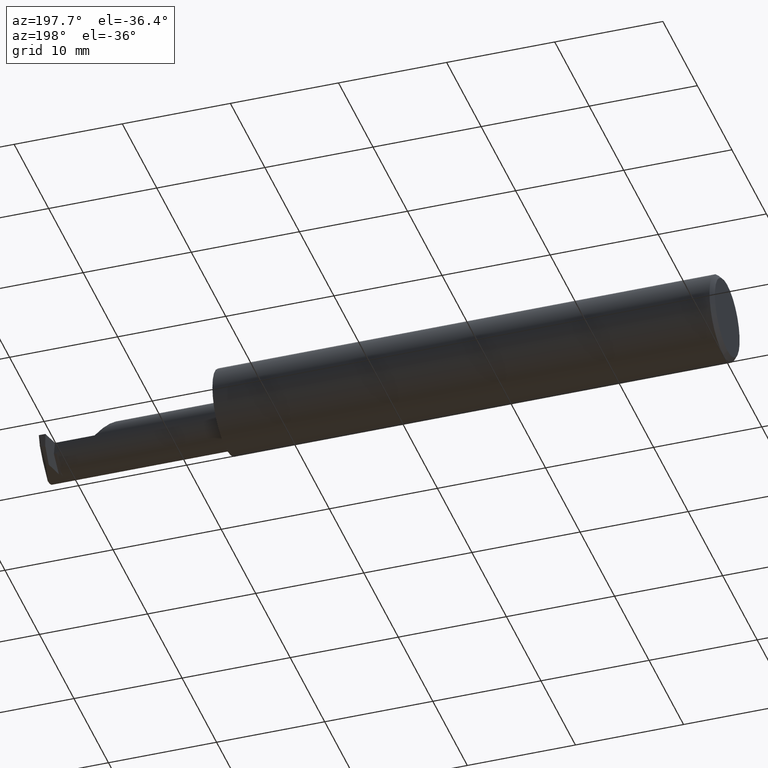
[diagram: clean part render]
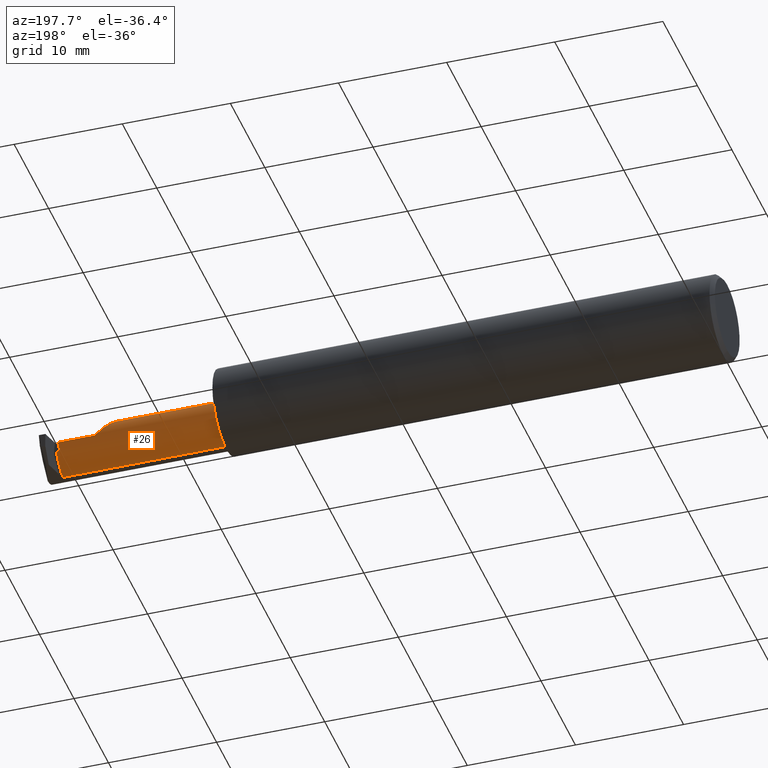
[diagram: same view with one face highlighted and labeled with its STEP entity id]
A machine part, auxiliary view. The second image highlights one B-rep face of the part: STEP entity #26.
In plain terms, the highlighted cylindrical surface (edge-blend (fillet) strip) has radius 2.2225 mm, axis along (-1, -0, -0).
Its self-contained STEP definition (entity closure, byte-faithful):
#9 = DIRECTION ( 'NONE',  ( 1.000000000000000000, 0.000000000000000000, 0.000000000000000000 ) ) ;
#12 = DIRECTION ( 'NONE',  ( -1.000000000000000000, -0.000000000000000000, -0.000000000000000000 ) ) ;
#16 = LINE ( 'NONE', #838, #612 ) ;
#24 = VERTEX_POINT ( 'NONE', #90 ) ;
#26 = ADVANCED_FACE ( 'NONE', ( #467 ), #842, .T. ) ;
#30 = ORIENTED_EDGE ( 'NONE', *, *, #316, .T. ) ;
#36 = DIRECTION ( 'NONE',  ( 1.000000000000000000, 0.000000000000000000, 0.000000000000000000 ) ) ;
#54 = LINE ( 'NONE', #189, #606 ) ;
#67 = VERTEX_POINT ( 'NONE', #389 ) ;
#70 = CARTESIAN_POINT ( 'NONE',  ( 1.824999999999999956, -0.07560000000000000053, -0.08750000000000002220 ) ) ;
#78 = VERTEX_POINT ( 'NONE', #680 ) ;
#90 = CARTESIAN_POINT ( 'NONE',  ( 2.212499999999999911, -0.07560000000000001441, 0.08750000000000002220 ) ) ;
#99 = EDGE_CURVE ( 'NONE', #67, #150, #16, .T. ) ;
#107 = VERTEX_POINT ( 'NONE', #834 ) ;
#112 = DIRECTION ( 'NONE',  ( -1.000000000000000000, -0.000000000000000000, -0.000000000000000000 ) ) ;
#141 = DIRECTION ( 'NONE',  ( -1.000000000000000000, -0.000000000000000000, -0.000000000000000000 ) ) ;
#147 = CARTESIAN_POINT ( 'NONE',  ( 1.849999999999999867, -0.07560000000000001441, 0.000000000000000000 ) ) ;
#149 = CIRCLE ( 'NONE', #195, 0.08750000000000002220 ) ;
#150 = VERTEX_POINT ( 'NONE', #381 ) ;
#175 = EDGE_CURVE ( 'NONE', #332, #24, #425, .T. ) ;
#180 = CIRCLE ( 'NONE', #354, 0.08750000000000002220 ) ;
#182 = CARTESIAN_POINT ( 'NONE',  ( 2.440987044514465687, 0.001198827012964401219, -0.04193077830702378328 ) ) ;
#189 = CARTESIAN_POINT ( 'NONE',  ( 1.824999999999999956, 0.01190000000000001473, -4.286122238378320280E-17 ) ) ;
#195 = AXIS2_PLACEMENT_3D ( 'NONE', #417, #910, #709 ) ;
#229 = CARTESIAN_POINT ( 'NONE',  ( 2.429429409888629987, 0.009400493273904695149, -0.02406399138364158016 ) ) ;
#241 = VERTEX_POINT ( 'NONE', #182 ) ;
#254 = CARTESIAN_POINT ( 'NONE',  ( 2.442499999999999893, -0.07560000000000001441, -0.08750000000000006384 ) ) ;
#265 = VERTEX_POINT ( 'NONE', #632 ) ;
#304 = VECTOR ( 'NONE', #807, 39.37007874015748143 ) ;
#311 = DIRECTION ( 'NONE',  ( 0.000000000000000000, 0.000000000000000000, 1.000000000000000000 ) ) ;
#316 = EDGE_CURVE ( 'NONE', #542, #265, #949, .T. ) ;
#320 = ORIENTED_EDGE ( 'NONE', *, *, #416, .T. ) ;
#324 = DIRECTION ( 'NONE',  ( -1.000000000000000000, -0.000000000000000000, -0.000000000000000000 ) ) ;
#326 = ORIENTED_EDGE ( 'NONE', *, *, #678, .T. ) ;
#332 = VERTEX_POINT ( 'NONE', #655 ) ;
#335 = AXIS2_PLACEMENT_3D ( 'NONE', #396, #324, #820 ) ;
#342 = EDGE_CURVE ( 'NONE', #107, #78, #446, .T. ) ;
#346 = EDGE_CURVE ( 'NONE', #78, #597, #461, .T. ) ;
#352 = ORIENTED_EDGE ( 'NONE', *, *, #342, .F. ) ;
#354 = AXIS2_PLACEMENT_3D ( 'NONE', #147, #438, #823 ) ;
#363 = CARTESIAN_POINT ( 'NONE',  ( 2.431928916614725544, 0.01190000000000001647, -0.01216180653188870912 ) ) ;
#381 = CARTESIAN_POINT ( 'NONE',  ( 2.442499999999999893, -0.04764222079116626346, -0.08291328350578157369 ) ) ;
#389 = CARTESIAN_POINT ( 'NONE',  ( 2.440987044514465687, -0.04764222079116627734, -0.08291328350578157369 ) ) ;
#394 = CIRCLE ( 'NONE', #578, 0.08750000000000003608 ) ;
#396 = CARTESIAN_POINT ( 'NONE',  ( 2.442499999999999893, -0.07560000000000001441, 0.000000000000000000 ) ) ;
#401 = CARTESIAN_POINT ( 'NONE',  ( 2.212499999999999911, -0.07560000000000001441, 0.08750000000000002220 ) ) ;
#405 = CARTESIAN_POINT ( 'NONE',  ( 2.212499999999999911, -0.02434368670764566409, 0.08750000000000006384 ) ) ;
#407 = VERTEX_POINT ( 'NONE', #665 ) ;
#415 = ORIENTED_EDGE ( 'NONE', *, *, #855, .T. ) ;
#416 = EDGE_CURVE ( 'NONE', #150, #542, #536, .T. ) ;
#417 = CARTESIAN_POINT ( 'NONE',  ( 2.440987044514465687, -0.07560000000000001441, 0.000000000000000000 ) ) ;
#425 =( BOUNDED_CURVE ( )  B_SPLINE_CURVE ( 3, ( #926, #636, #405, #401 ),
 .UNSPECIFIED., .F., .F. ) 
 B_SPLINE_CURVE_WITH_KNOTS ( ( 4, 4 ),
 ( 4.712388980384686121, 6.283185307179586232 ),
 .UNSPECIFIED. ) 
 CURVE ( )  GEOMETRIC_REPRESENTATION_ITEM ( )  RATIONAL_B_SPLINE_CURVE ( ( 1.000000000000000000, 0.8047378541243641603, 0.8047378541243641603, 1.000000000000000000 ) ) 
 REPRESENTATION_ITEM ( '' )  );
#436 = ORIENTED_EDGE ( 'NONE', *, *, #826, .T. ) ;
#438 = DIRECTION ( 'NONE',  ( 1.000000000000000000, 0.000000000000000000, 0.000000000000000000 ) ) ;
#446 = LINE ( 'NONE', #867, #304 ) ;
#461 =( BOUNDED_CURVE ( )  B_SPLINE_CURVE ( 3, ( #738, #229, #363, #512 ),
 .UNSPECIFIED., .F., .T. ) 
 B_SPLINE_CURVE_WITH_KNOTS ( ( 4, 4 ),
 ( 1.156804228221845365, 1.570796326794896780 ),
 .UNSPECIFIED. ) 
 CURVE ( )  GEOMETRIC_REPRESENTATION_ITEM ( )  RATIONAL_B_SPLINE_CURVE ( ( 1.000000000000000000, 0.9857684695413674314, 0.9857684695413674314, 1.000000000000000000 ) ) 
 REPRESENTATION_ITEM ( '' )  );
#467 = FACE_OUTER_BOUND ( 'NONE', #731, .T. ) ;
#477 = LINE ( 'NONE', #543, #745 ) ;
#488 = ORIENTED_EDGE ( 'NONE', *, *, #850, .T. ) ;
#504 = DIRECTION ( 'NONE',  ( -1.000000000000000000, -0.000000000000000000, -0.000000000000000000 ) ) ;
#511 = CARTESIAN_POINT ( 'NONE',  ( 2.442499999999999893, -0.07560000000000001441, 0.000000000000000000 ) ) ;
#512 = CARTESIAN_POINT ( 'NONE',  ( 2.434482944938646920, 0.01190000000000008065, 0.000000000000000000 ) ) ;
#518 = DIRECTION ( 'NONE',  ( 0.000000000000000000, 0.000000000000000000, 1.000000000000000000 ) ) ;
#529 = ORIENTED_EDGE ( 'NONE', *, *, #924, .F. ) ;
#536 = CIRCLE ( 'NONE', #335, 0.08750000000000003608 ) ;
#542 = VERTEX_POINT ( 'NONE', #254 ) ;
#543 = CARTESIAN_POINT ( 'NONE',  ( 1.824999999999999956, -0.07560000000000001441, 0.08750000000000002220 ) ) ;
#549 = CARTESIAN_POINT ( 'NONE',  ( 2.434482944938646920, 0.01190000000000008065, 0.000000000000000000 ) ) ;
#578 = AXIS2_PLACEMENT_3D ( 'NONE', #511, #141, #518 ) ;
#597 = VERTEX_POINT ( 'NONE', #549 ) ;
#606 = VECTOR ( 'NONE', #36, 39.37007874015748143 ) ;
#612 = VECTOR ( 'NONE', #9, 39.37007874015748143 ) ;
#624 = VERTEX_POINT ( 'NONE', #635 ) ;
#632 = CARTESIAN_POINT ( 'NONE',  ( 1.849999999999999867, -0.07560000000000000053, -0.08750000000000002220 ) ) ;
#633 = ORIENTED_EDGE ( 'NONE', *, *, #346, .F. ) ;
#635 = CARTESIAN_POINT ( 'NONE',  ( 2.442499999999999893, 0.001198827012964389727, -0.04193077830702376940 ) ) ;
#636 = CARTESIAN_POINT ( 'NONE',  ( 2.248743686707645573, 0.01190000000000020902, 0.05125631329235402073 ) ) ;
#655 = CARTESIAN_POINT ( 'NONE',  ( 2.300000000000000266, 0.01190000000000008412, -4.286122238378320280E-17 ) ) ;
#665 = CARTESIAN_POINT ( 'NONE',  ( 1.849999999999999867, -0.07560000000000001441, 0.08750000000000002220 ) ) ;
#676 = DIRECTION ( 'NONE',  ( -1.000000000000000000, -0.000000000000000000, -0.000000000000000000 ) ) ;
#678 = EDGE_CURVE ( 'NONE', #241, #67, #149, .T. ) ;
#680 = CARTESIAN_POINT ( 'NONE',  ( 2.427091140178673001, 0.004508195240025976089, -0.03519839563653264641 ) ) ;
#709 = DIRECTION ( 'NONE',  ( 0.000000000000000000, 1.756187995927025960E-15, -1.000000000000000000 ) ) ;
#731 = EDGE_LOOP ( 'NONE', ( #320, #30, #488, #529, #760, #415, #633, #352, #436, #804, #326, #852 ) ) ;
#732 = VECTOR ( 'NONE', #676, 39.37007874015748143 ) ;
#738 = CARTESIAN_POINT ( 'NONE',  ( 2.427091140178673001, 0.004508195240025976089, -0.03519839563653264641 ) ) ;
#745 = VECTOR ( 'NONE', #112, 39.37007874015748143 ) ;
#749 = CARTESIAN_POINT ( 'NONE',  ( 1.824999999999999956, -0.07560000000000001441, 0.000000000000000000 ) ) ;
#760 = ORIENTED_EDGE ( 'NONE', *, *, #175, .F. ) ;
#765 = LINE ( 'NONE', #832, #732 ) ;
#779 = VECTOR ( 'NONE', #504, 39.37007874015748143 ) ;
#804 = ORIENTED_EDGE ( 'NONE', *, *, #883, .T. ) ;
#807 = DIRECTION ( 'NONE',  ( -1.000000000000000000, -0.000000000000000000, -0.000000000000000000 ) ) ;
#820 = DIRECTION ( 'NONE',  ( 0.000000000000000000, 0.000000000000000000, 1.000000000000000000 ) ) ;
#823 = DIRECTION ( 'NONE',  ( 0.000000000000000000, 0.000000000000000000, -1.000000000000000000 ) ) ;
#826 = EDGE_CURVE ( 'NONE', #107, #624, #394, .T. ) ;
#829 = AXIS2_PLACEMENT_3D ( 'NONE', #749, #12, #311 ) ;
#832 = CARTESIAN_POINT ( 'NONE',  ( 1.824999999999999956, 0.001198827012964389727, -0.04193077830702376940 ) ) ;
#834 = CARTESIAN_POINT ( 'NONE',  ( 2.442499999999999893, 0.004508195240025956139, -0.03519839563653275050 ) ) ;
#838 = CARTESIAN_POINT ( 'NONE',  ( 1.824999999999999956, -0.04764222079116629815, -0.08291328350578155981 ) ) ;
#842 = CYLINDRICAL_SURFACE ( 'NONE', #829, 0.08750000000000002220 ) ;
#850 = EDGE_CURVE ( 'NONE', #265, #407, #180, .T. ) ;
#852 = ORIENTED_EDGE ( 'NONE', *, *, #99, .T. ) ;
#855 = EDGE_CURVE ( 'NONE', #332, #597, #54, .T. ) ;
#867 = CARTESIAN_POINT ( 'NONE',  ( 1.824999999999999956, 0.004508195240025706339, -0.03519839563653326397 ) ) ;
#883 = EDGE_CURVE ( 'NONE', #624, #241, #765, .T. ) ;
#910 = DIRECTION ( 'NONE',  ( -1.000000000000000000, -0.000000000000000000, -0.000000000000000000 ) ) ;
#924 = EDGE_CURVE ( 'NONE', #24, #407, #477, .T. ) ;
#926 = CARTESIAN_POINT ( 'NONE',  ( 2.300000000000000266, 0.01190000000000008412, -4.286122238378320280E-17 ) ) ;
#949 = LINE ( 'NONE', #70, #779 ) ;